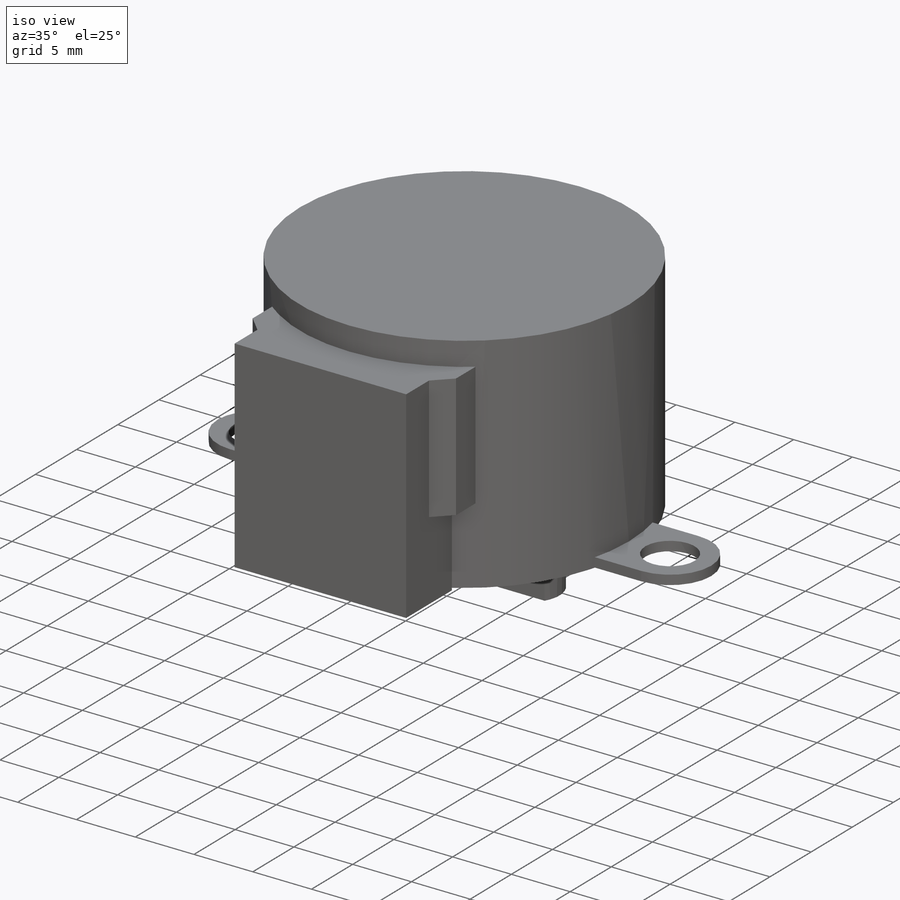
[diagram: iso view]
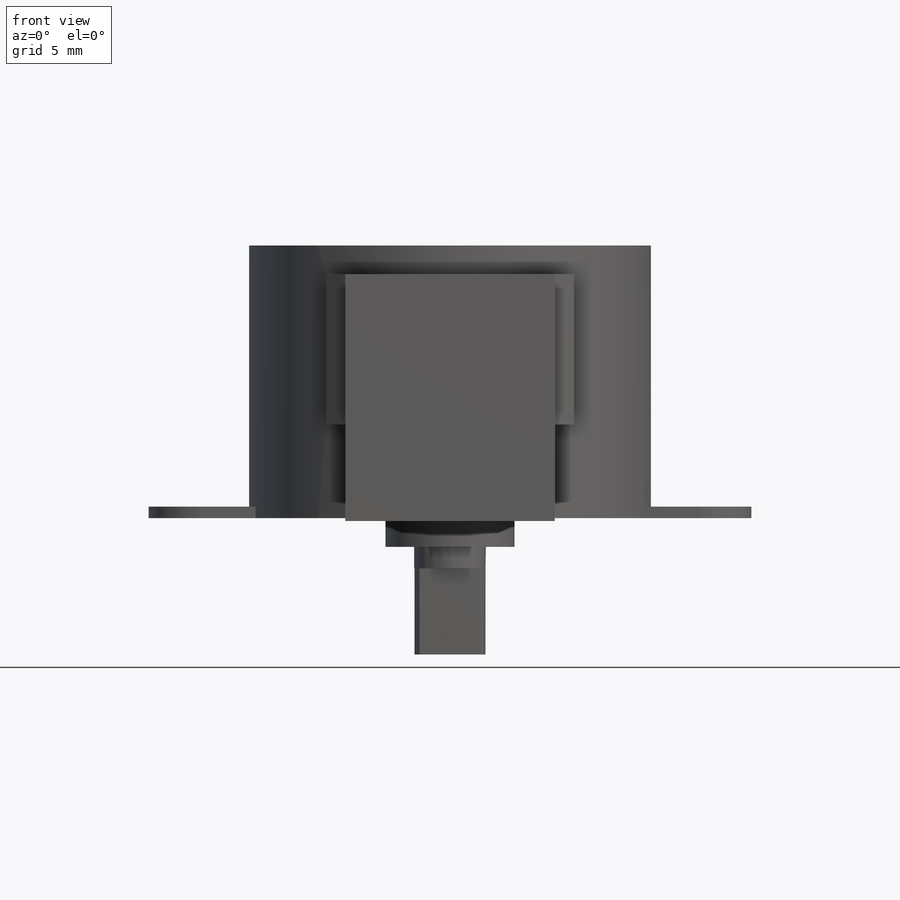
[diagram: front view]
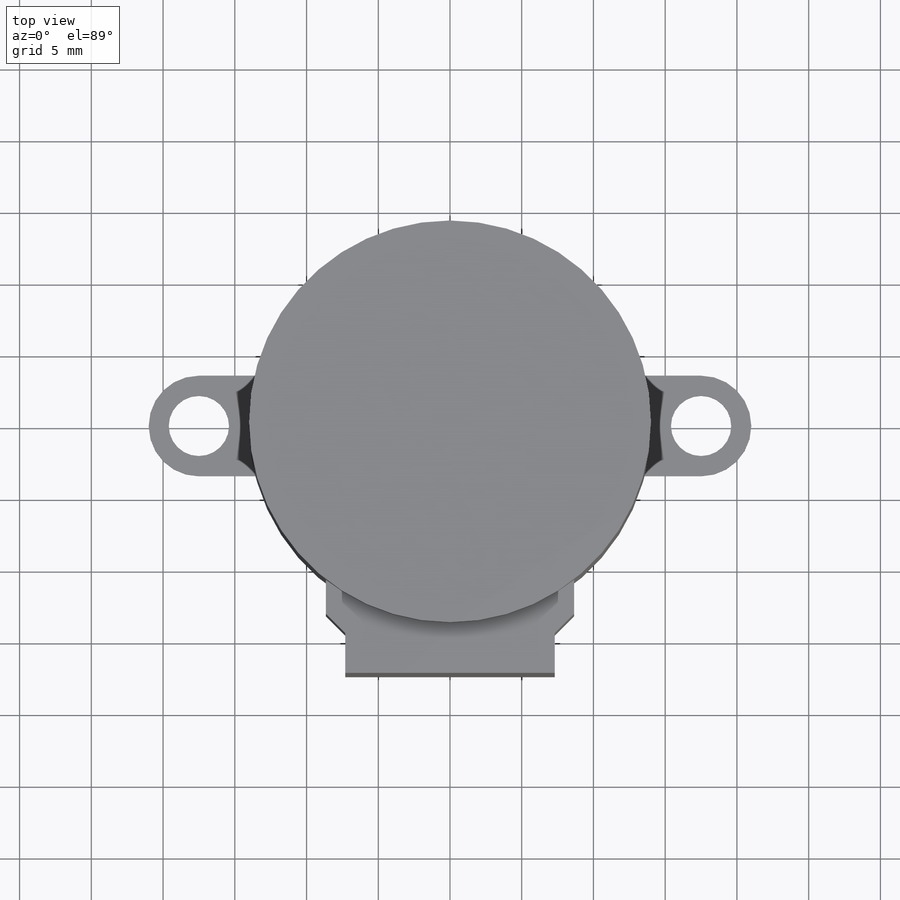
[diagram: top view]
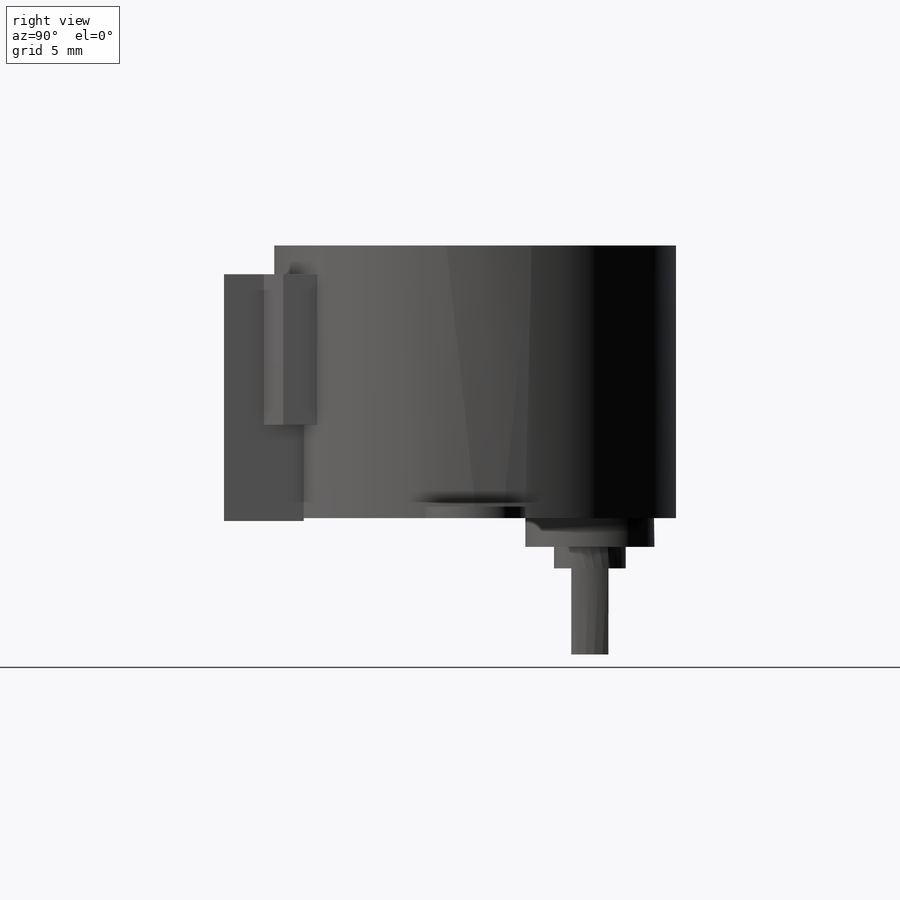
[diagram: right view]
SOLIDWORKS PART (.sldprt)
format: sldprt  version: not decoded by parser v0  size: 358,912 bytes
history: native  units: mm
features: sketch x9, extrude x8, material x1, cut_extrude x1 (+12 scaffold rows collapsed)
feature tree (31):
  scaffold x12  (default folders/planes/origin — collapsed)
  material  "201 Annealed Stainless Steel (SS)"
  sketch  "Sketch1"  dims[c1.D1=~49.633114mm c1.D2=~46.770203mm c1.D3=~23.385101mm c2.D2=28.0mm c2.D6=4.2mm c2.D1=14.6mm c2.D3=3.0mm c2.D4=~5.134432mm c2.D5=7.0mm c2.D7=30.7mm c3.D3=17.5mm c3.D4=35.0mm]
  extrude  "Boss-Extrude1"  Depth=19mm
  extrude  "Boss-Extrude2"  [1 undecoded]
  sketch  "Sketch1<3>"  dims[D1=0.8mm]
  sketch  "Sketch2"  dims[c1.D2=9.0mm c1.D3=5.0mm c1.D1=8.0mm c2.D3=~2.589265mm]
  extrude  "Boss-Extrude3"  Depth=2mm
  extrude  "Boss-Extrude4"  [1 undecoded]
  sketch  "Sketch2<3>"  dims[D1=1.5mm]
  sketch  "Sketch5"  dims[D1=2.589mm]
  extrude  "Boss-Extrude6"  Depth=6mm
  sketch  "Sketch6"  dims[c1.D1=17.3mm c1.D2=~1.007951mm c2.D2=45.0deg]
  extrude  "Boss-Extrude7"  Depth=12.5mm
  sketch  "Sketch7"
  cut_extrude  "Cut-Extrude1"  Depth=2mm
  sketch  "Sketch8"
  extrude  "Boss-Extrude8"  [1 undecoded]
  sketch  "Sketch10"  dims[D1=1.0mm D2=1.5mm]
  extrude  "Boss-Extrude9"  Depth=0.2mm
decode coverage: 13 of 18 modeling features carry decoded parameters
note: ~ marks probable driven/reference dimensions
note: 3 parameter values undecoded
summary: no parameter record found for 3 features
note: suppression state not decoded; provenance and decode notes live in map.json
